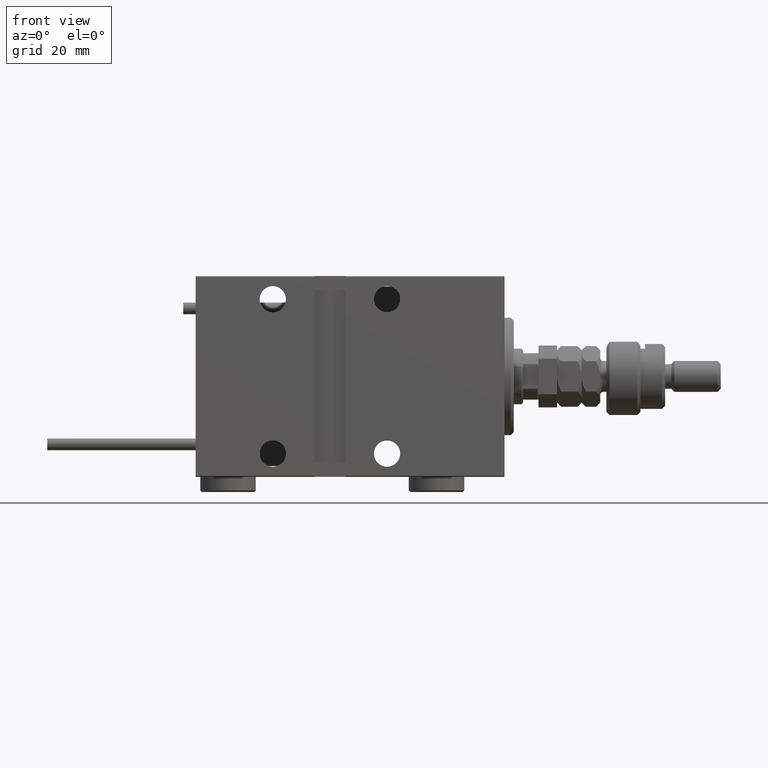
[diagram: clean part render]
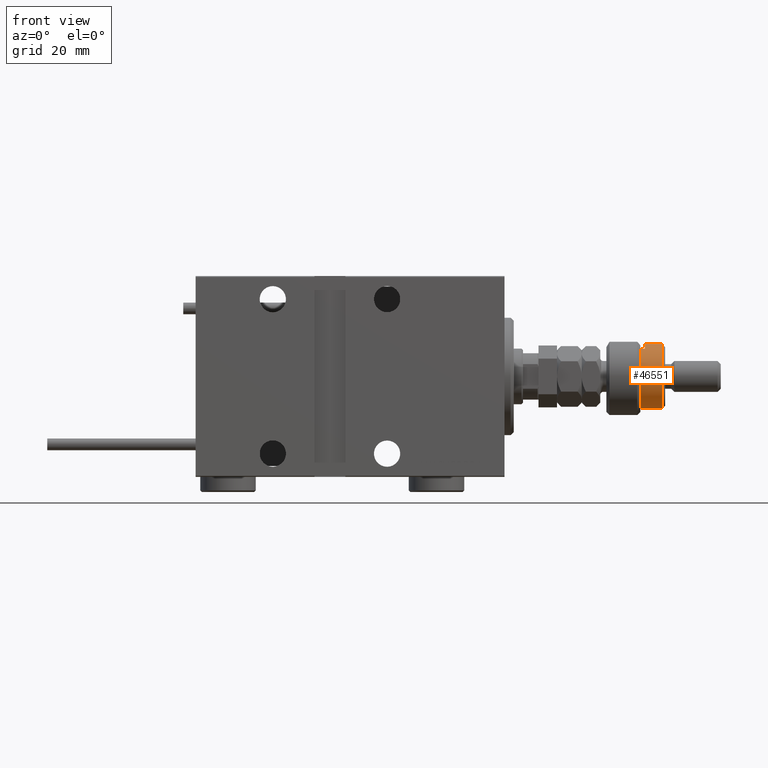
[diagram: same view with one face highlighted and labeled with its STEP entity id]
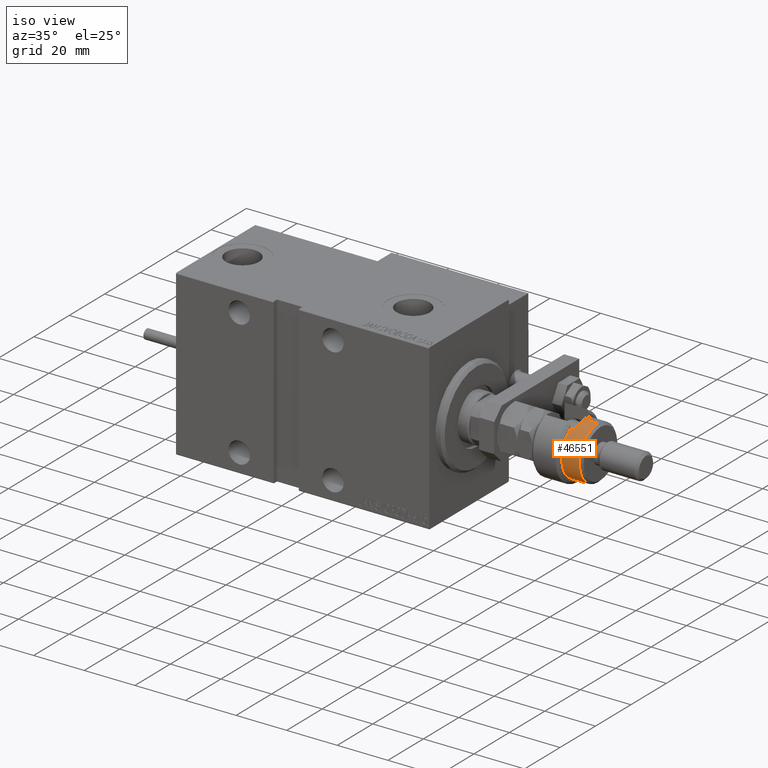
[diagram: same view with one face highlighted and labeled with its STEP entity id]
A machine part, front view. The second image highlights one B-rep face of the part: STEP entity #46551.
A second angle (iso view) of the same face is appended — the face is thin or edge-on in the first view.
In plain terms, the highlighted cylindrical surface (edge-blend (fillet) strip) has radius 10.5 mm, axis along (-1, -0, 0).
Its self-contained STEP definition (entity closure, byte-faithful):
#326 = VERTEX_POINT ( 'NONE', #16753 ) ;
#2488 = EDGE_CURVE ( 'NONE', #40750, #326, #26935, .T. ) ;
#2746 = VERTEX_POINT ( 'NONE', #47432 ) ;
#3174 = LINE ( 'NONE', #40511, #44705 ) ;
#3264 = DIRECTION ( 'NONE',  ( -0.000000000000000000, -0.000000000000000000, -1.000000000000000000 ) ) ;
#5658 = VERTEX_POINT ( 'NONE', #23372 ) ;
#6736 = DIRECTION ( 'NONE',  ( -0.000000000000000000, -0.000000000000000000, -1.000000000000000000 ) ) ;
#7732 = CARTESIAN_POINT ( 'NONE',  ( -8.944271909999159220, -5.500000000000000000, 11.00000000000000000 ) ) ;
#7898 = CIRCLE ( 'NONE', #33286, 10.50000000000000000 ) ;
#9511 = DIRECTION ( 'NONE',  ( 1.000000000000000000, 0.000000000000000000, 0.000000000000000000 ) ) ;
#14073 = DIRECTION ( 'NONE',  ( -0.000000000000000000, -0.000000000000000000, -1.000000000000000000 ) ) ;
#14256 = DIRECTION ( 'NONE',  ( 0.000000000000000000, 0.000000000000000000, -1.000000000000000000 ) ) ;
#14670 = DIRECTION ( 'NONE',  ( 0.000000000000000000, 0.000000000000000000, -1.000000000000000000 ) ) ;
#15120 = VERTEX_POINT ( 'NONE', #26065 ) ;
#15270 = ORIENTED_EDGE ( 'NONE', *, *, #19492, .T. ) ;
#16753 = CARTESIAN_POINT ( 'NONE',  ( 10.50000000000000000, 1.285879139104720831E-15, 11.00000000000000000 ) ) ;
#18130 = AXIS2_PLACEMENT_3D ( 'NONE', #40868, #3264, #35655 ) ;
#19280 = ORIENTED_EDGE ( 'NONE', *, *, #19903, .T. ) ;
#19492 = EDGE_CURVE ( 'NONE', #15120, #5658, #7898, .T. ) ;
#19646 = EDGE_CURVE ( 'NONE', #15120, #326, #3174, .T. ) ;
#19878 = DIRECTION ( 'NONE',  ( -0.000000000000000000, -0.000000000000000000, -1.000000000000000000 ) ) ;
#19903 = EDGE_CURVE ( 'NONE', #5658, #2746, #51149, .T. ) ;
#21512 = VECTOR ( 'NONE', #6736, 1000.000000000000000 ) ;
#23372 = CARTESIAN_POINT ( 'NONE',  ( -10.50000000000000000, 0.000000000000000000, 17.99999999999999645 ) ) ;
#25701 = ORIENTED_EDGE ( 'NONE', *, *, #19646, .F. ) ;
#26065 = CARTESIAN_POINT ( 'NONE',  ( 10.50000000000000000, 1.285879139104720831E-15, 17.99999999999999645 ) ) ;
#26935 = CIRCLE ( 'NONE', #32228, 10.50000000000000000 ) ;
#27421 = FACE_OUTER_BOUND ( 'NONE', #41369, .T. ) ;
#27592 = LINE ( 'NONE', #28139, #21512 ) ;
#27610 = CIRCLE ( 'NONE', #31985, 10.50000000000000000 ) ;
#27685 = EDGE_CURVE ( 'NONE', #34531, #2746, #27610, .T. ) ;
#28139 = CARTESIAN_POINT ( 'NONE',  ( -8.944271909999159220, -5.500000000000000000, 19.00000000000000000 ) ) ;
#28423 = EDGE_CURVE ( 'NONE', #34531, #40750, #27592, .T. ) ;
#30751 = CARTESIAN_POINT ( 'NONE',  ( 0.000000000000000000, 0.000000000000000000, 12.50000000000000000 ) ) ;
#30994 = CARTESIAN_POINT ( 'NONE',  ( 0.000000000000000000, 0.000000000000000000, 11.00000000000000000 ) ) ;
#31985 = AXIS2_PLACEMENT_3D ( 'NONE', #30751, #14256, #47514 ) ;
#32228 = AXIS2_PLACEMENT_3D ( 'NONE', #30994, #34859, #47757 ) ;
#33286 = AXIS2_PLACEMENT_3D ( 'NONE', #52296, #14670, #9511 ) ;
#34531 = VERTEX_POINT ( 'NONE', #53496 ) ;
#34859 = DIRECTION ( 'NONE',  ( 0.000000000000000000, 0.000000000000000000, 1.000000000000000000 ) ) ;
#35655 = DIRECTION ( 'NONE',  ( -1.000000000000000000, 0.000000000000000000, 0.000000000000000000 ) ) ;
#36261 = CARTESIAN_POINT ( 'NONE',  ( -10.50000000000000000, 0.000000000000000000, 19.00000000000000000 ) ) ;
#37719 = VECTOR ( 'NONE', #14073, 1000.000000000000000 ) ;
#40511 = CARTESIAN_POINT ( 'NONE',  ( 10.50000000000000000, 1.285879139104720831E-15, 19.00000000000000000 ) ) ;
#40750 = VERTEX_POINT ( 'NONE', #7732 ) ;
#40868 = CARTESIAN_POINT ( 'NONE',  ( 0.000000000000000000, 0.000000000000000000, 19.00000000000000000 ) ) ;
#41369 = EDGE_LOOP ( 'NONE', ( #25701, #15270, #19280, #44317, #52482, #50894 ) ) ;
#44317 = ORIENTED_EDGE ( 'NONE', *, *, #27685, .F. ) ;
#44705 = VECTOR ( 'NONE', #19878, 1000.000000000000000 ) ;
#46551 = ADVANCED_FACE ( 'NONE', ( #27421 ), #48015, .T. ) ;
#47432 = CARTESIAN_POINT ( 'NONE',  ( -10.50000000000000000, 0.000000000000000000, 12.50000000000000000 ) ) ;
#47514 = DIRECTION ( 'NONE',  ( -1.000000000000000000, 0.000000000000000000, 0.000000000000000000 ) ) ;
#47757 = DIRECTION ( 'NONE',  ( 1.000000000000000000, 0.000000000000000000, 0.000000000000000000 ) ) ;
#48015 = CYLINDRICAL_SURFACE ( 'NONE', #18130, 10.50000000000000000 ) ;
#50894 = ORIENTED_EDGE ( 'NONE', *, *, #2488, .T. ) ;
#51149 = LINE ( 'NONE', #36261, #37719 ) ;
#52296 = CARTESIAN_POINT ( 'NONE',  ( 0.000000000000000000, 0.000000000000000000, 17.99999999999999645 ) ) ;
#52482 = ORIENTED_EDGE ( 'NONE', *, *, #28423, .T. ) ;
#53496 = CARTESIAN_POINT ( 'NONE',  ( -8.944271909999159220, -5.500000000000000000, 12.50000000000000000 ) ) ;